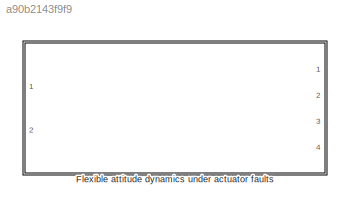
MODEL slx_a90b2143f9f9
KIND model
CONFIG AbsTol = auto
CONFIG EnableMultiTasking = off
CONFIG FixedStep = auto
CONFIG MaxStep = auto
CONFIG MinStep = auto
CONFIG RelTol = 1e-3
CONFIG SampleTimeConstraint = Unconstrained
CONFIG SolverName = VariableStepAuto
CONFIG StartTime = 0.0
CONFIG StopTime = 10.0
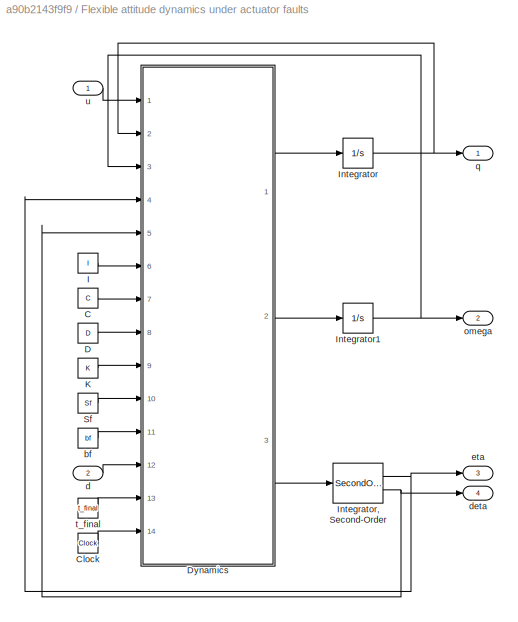
BLOCK [SubSystem] Flexible attitude dynamics under actuator faults
  Ports = [2, 4]
  RequestExecContextInheritance = off
BLOCK [Constant] Flexible attitude dynamics under actuator faults/C
  Value = C
BLOCK [Clock] Flexible attitude dynamics under actuator faults/Clock
BLOCK [Constant] Flexible attitude dynamics under actuator faults/D
  Value = D
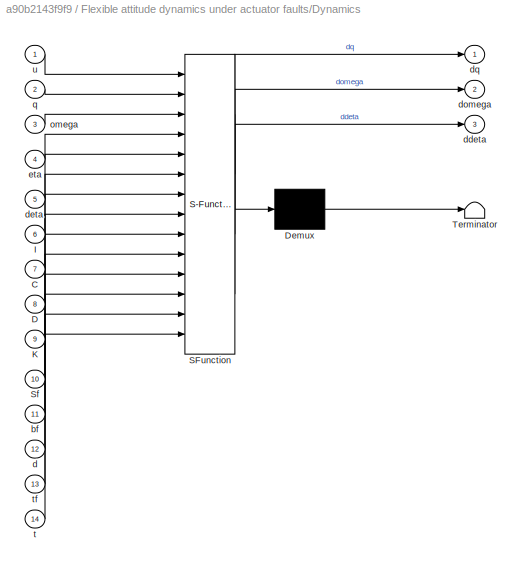
BLOCK [SubSystem] Flexible attitude dynamics under actuator faults/Dynamics
  ErrorFcn = Stateflow.Translate.translate
  PermitHierarchicalResolution = ExplicitOnly
  Ports = [14, 3]
  RequestExecContextInheritance = off
  SFBlockType = MATLAB Function
  TreatAsAtomicUnit = on
BLOCK [Demux] Flexible attitude dynamics under actuator faults/Dynamics/ Demux 
  Outputs = 1
  Ports = [1, 1]
BLOCK [S-Function] Flexible attitude dynamics under actuator faults/Dynamics/ SFunction 
  EnableBusSupport = on
  FunctionName = sf_sfun
  PortCounts = [14 4]
  Ports = [14, 4]
  SFcnIsStateOwnerBlock = off
  SFunctionDeploymentMode = off
  Tag = Stateflow S-Function 2
BLOCK [Terminator] Flexible attitude dynamics under actuator faults/Dynamics/ Terminator 
BLOCK [Inport] Flexible attitude dynamics under actuator faults/Dynamics/C
  Port = 7
BLOCK [Inport] Flexible attitude dynamics under actuator faults/Dynamics/D
  Port = 8
BLOCK [Inport] Flexible attitude dynamics under actuator faults/Dynamics/I
  Port = 6
BLOCK [Inport] Flexible attitude dynamics under actuator faults/Dynamics/K
  Port = 9
BLOCK [Inport] Flexible attitude dynamics under actuator faults/Dynamics/Sf
  Port = 10
BLOCK [Inport] Flexible attitude dynamics under actuator faults/Dynamics/bf
  Port = 11
BLOCK [Inport] Flexible attitude dynamics under actuator faults/Dynamics/d
  Port = 12
BLOCK [Outport] Flexible attitude dynamics under actuator faults/Dynamics/ddeta
  Port = 3
BLOCK [Inport] Flexible attitude dynamics under actuator faults/Dynamics/deta
  Port = 5
BLOCK [Outport] Flexible attitude dynamics under actuator faults/Dynamics/domega
  Port = 2
BLOCK [Outport] Flexible attitude dynamics under actuator faults/Dynamics/dq
BLOCK [Inport] Flexible attitude dynamics under actuator faults/Dynamics/eta
  Port = 4
BLOCK [Inport] Flexible attitude dynamics under actuator faults/Dynamics/omega
  Port = 3
BLOCK [Inport] Flexible attitude dynamics under actuator faults/Dynamics/q
  Port = 2
BLOCK [Inport] Flexible attitude dynamics under actuator faults/Dynamics/t
  Port = 14
BLOCK [Inport] Flexible attitude dynamics under actuator faults/Dynamics/tf
  Port = 13
BLOCK [Inport] Flexible attitude dynamics under actuator faults/Dynamics/u
BLOCK [Constant] Flexible attitude dynamics under actuator faults/I
  Value = I
BLOCK [Integrator] Flexible attitude dynamics under actuator faults/Integrator
  InitialCondition = q0
  Ports = [1, 1]
BLOCK [SecondOrderIntegrator] Flexible attitude dynamics under actuator faults/Integrator, Second-Order
  ICDXDT = deta0
  ICX = eta0
  Ports = [1, 2]
BLOCK [Integrator] Flexible attitude dynamics under actuator faults/Integrator1
  InitialCondition = omega0
  Ports = [1, 1]
BLOCK [Constant] Flexible attitude dynamics under actuator faults/K
  Value = K
BLOCK [Constant] Flexible attitude dynamics under actuator faults/Sf
  Value = Sf
BLOCK [Constant] Flexible attitude dynamics under actuator faults/bf
  Value = bf
BLOCK [Inport] Flexible attitude dynamics under actuator faults/d
  Port = 2
BLOCK [Outport] Flexible attitude dynamics under actuator faults/deta
  Port = 4
BLOCK [Outport] Flexible attitude dynamics under actuator faults/eta
  Port = 3
BLOCK [Outport] Flexible attitude dynamics under actuator faults/omega
  Port = 2
BLOCK [Outport] Flexible attitude dynamics under actuator faults/q
BLOCK [Constant] Flexible attitude dynamics under actuator faults/t_final
  Value = t_final
BLOCK [Inport] Flexible attitude dynamics under actuator faults/u
LINE Flexible attitude dynamics under actuator faults/C:1 -> Flexible attitude dynamics under actuator faults/Dynamics:7
LINE Flexible attitude dynamics under actuator faults/Clock:1 -> Flexible attitude dynamics under actuator faults/Dynamics:14
LINE Flexible attitude dynamics under actuator faults/D:1 -> Flexible attitude dynamics under actuator faults/Dynamics:8
LINE Flexible attitude dynamics under actuator faults/Dynamics:1 -> Flexible attitude dynamics under actuator faults/Integrator:1
LINE Flexible attitude dynamics under actuator faults/Dynamics:2 -> Flexible attitude dynamics under actuator faults/Integrator1:1
LINE Flexible attitude dynamics under actuator faults/Dynamics:3 -> Flexible attitude dynamics under actuator faults/Integrator, Second-Order:1
LINE Flexible attitude dynamics under actuator faults/I:1 -> Flexible attitude dynamics under actuator faults/Dynamics:6
NET Flexible attitude dynamics under actuator faults/Integrator, Second-Order:1 -> Flexible attitude dynamics under actuator faults/Dynamics:4, Flexible attitude dynamics under actuator faults/eta:1
NET Flexible attitude dynamics under actuator faults/Integrator, Second-Order:2 -> Flexible attitude dynamics under actuator faults/Dynamics:5, Flexible attitude dynamics under actuator faults/deta:1
NET Flexible attitude dynamics under actuator faults/Integrator1:1 -> Flexible attitude dynamics under actuator faults/Dynamics:3, Flexible attitude dynamics under actuator faults/omega:1
NET Flexible attitude dynamics under actuator faults/Integrator:1 -> Flexible attitude dynamics under actuator faults/Dynamics:2, Flexible attitude dynamics under actuator faults/q:1
LINE Flexible attitude dynamics under actuator faults/K:1 -> Flexible attitude dynamics under actuator faults/Dynamics:9
LINE Flexible attitude dynamics under actuator faults/Sf:1 -> Flexible attitude dynamics under actuator faults/Dynamics:10
LINE Flexible attitude dynamics under actuator faults/bf:1 -> Flexible attitude dynamics under actuator faults/Dynamics:11
LINE Flexible attitude dynamics under actuator faults/d:1 -> Flexible attitude dynamics under actuator faults/Dynamics:12
LINE Flexible attitude dynamics under actuator faults/t_final:1 -> Flexible attitude dynamics under actuator faults/Dynamics:13
LINE Flexible attitude dynamics under actuator faults/u:1 -> Flexible attitude dynamics under actuator faults/Dynamics:1
note: NET lines group one-source signal fan-out (src -> all destinations, sorted); 1:1 wires keep LINE
CHART Flexible attitude dynamics under actuator faults/Dynamics states=1 transitions=1
  STATE_LABEL 'eML_blk_kernel()'
  STATE_LABEL "SCRIPT:\nfunction [dq,domega,ddeta] = fcn(u,q,omega,eta,deta,I,C,D,K,Sf,bf,d,tf,t)\n\n% if t<tf/2\n%     \n%     bf=zeros(3,1);\n%     \n% end\n\nqbracket=[0    -q(3)  q(2)\n          q(3)  0    -q(1)\n         -q(2)  q(1)  0];\n     \nomegabracket=[0        -omega(3)  omega(2)\n              omega(3)  0        -omega(1)\n             -omega(2)  omega(1)  0];\n\nTheta=0.5*(0.5*(1-q'*q)*eye(3)+qbracket+q*q');\n\ndq=T...<+129ch>"
CHART  states=0 transitions=0
